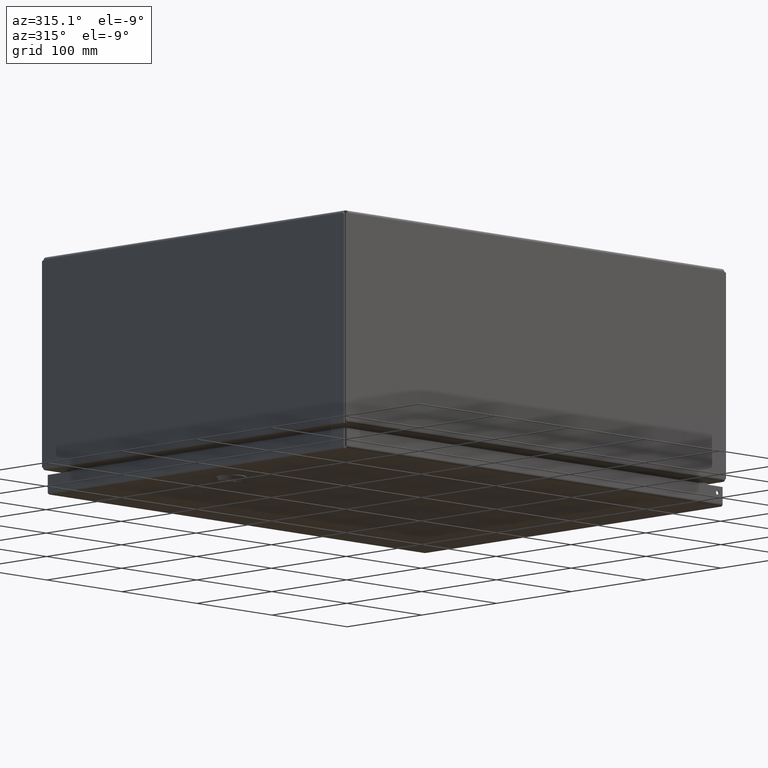
[diagram: clean part render]
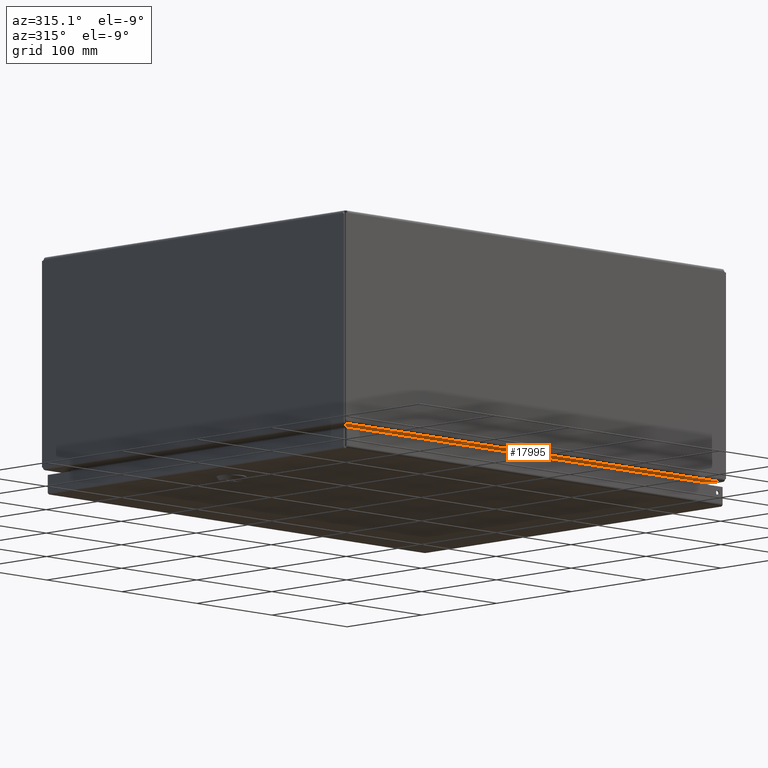
[diagram: same view with one face highlighted and labeled with its STEP entity id]
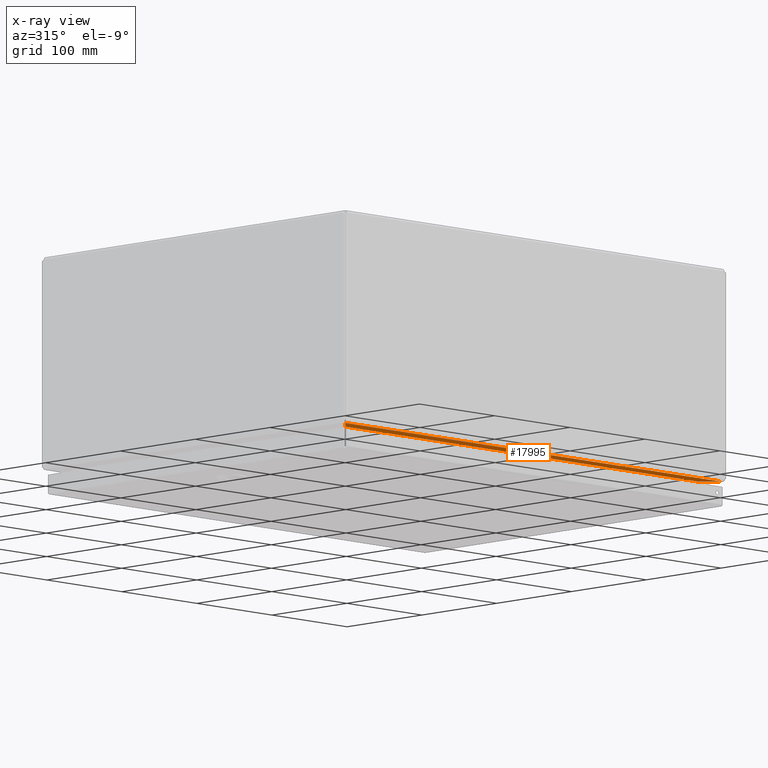
[diagram: x-ray of the same camera — body ghosted, the highlighted face saturated]
A machine part, auxiliary view. The second image highlights one B-rep face of the part: STEP entity #17995.
The next image is the same camera in x-ray: the body ghosted, the highlighted face saturated — about 0% of this face is hidden behind the body in this view.
In plain terms, the highlighted planar face has unit normal (0, -0, 1).
Its self-contained STEP definition (entity closure, byte-faithful):
#17075=CARTESIAN_POINT('',(0.718298543456044,0.707250000000003,8.000000000000004));
#17076=VERTEX_POINT('',#17075);
#17127=CARTESIAN_POINT('',(19.281701456544457,0.707250000000003,8.000000000000004));
#17128=VERTEX_POINT('',#17127);
#17154=CARTESIAN_POINT('',(19.281701456544454,0.707250000000003,8.000000000000004));
#17155=DIRECTION('',(-1.0,0.0,0.0));
#17156=VECTOR('',#17155,18.563402913088410);
#17157=LINE('',#17154,#17156);
#17158=EDGE_CURVE('',#17128,#17076,#17157,.T.);
#17201=CARTESIAN_POINT('',(19.883701456544461,0.105250000000001,8.0));
#17202=VERTEX_POINT('',#17201);
#17203=CARTESIAN_POINT('',(19.281701456544457,0.707250000000003,8.000000000000004));
#17204=DIRECTION('',(0.707106781186549,-0.707106781186546,-4.173003E-015));
#17205=VECTOR('',#17204,0.851356564548607);
#17206=LINE('',#17203,#17205);
#17207=EDGE_CURVE('',#17128,#17202,#17206,.T.);
#17972=CARTESIAN_POINT('',(10.0,0.415733078884576,8.000000000000002));
#17973=DIRECTION('',(0.0,0.0,-1.0));
#17974=DIRECTION('',(0.0,1.0,0.0));
#17975=AXIS2_PLACEMENT_3D('',#17972,#17973,#17974);
#17976=PLANE('',#17975);
#17977=ORIENTED_EDGE('',*,*,#17158,.T.);
#17978=CARTESIAN_POINT('',(0.116298543456038,0.105250000000001,8.0));
#17979=VERTEX_POINT('',#17978);
#17980=CARTESIAN_POINT('',(0.116298543456038,0.105250000000001,7.999999999999999));
#17981=DIRECTION('',(0.707106781186549,0.707106781186546,3.129752E-015));
#17982=VECTOR('',#17981,0.851356564548609);
#17983=LINE('',#17980,#17982);
#17984=EDGE_CURVE('',#17979,#17076,#17983,.T.);
#17985=ORIENTED_EDGE('',*,*,#17984,.F.);
#17986=CARTESIAN_POINT('',(0.116298543456038,0.105249999999997,8.0));
#17987=DIRECTION('',(1.0,0.0,0.0));
#17988=VECTOR('',#17987,19.767402913088418);
#17989=LINE('',#17986,#17988);
#17990=EDGE_CURVE('',#17979,#17202,#17989,.T.);
#17991=ORIENTED_EDGE('',*,*,#17990,.T.);
#17992=ORIENTED_EDGE('',*,*,#17207,.F.);
#17993=EDGE_LOOP('',(#17977,#17985,#17991,#17992));
#17994=FACE_OUTER_BOUND('',#17993,.T.);
#17995=ADVANCED_FACE('',(#17994),#17976,.F.);